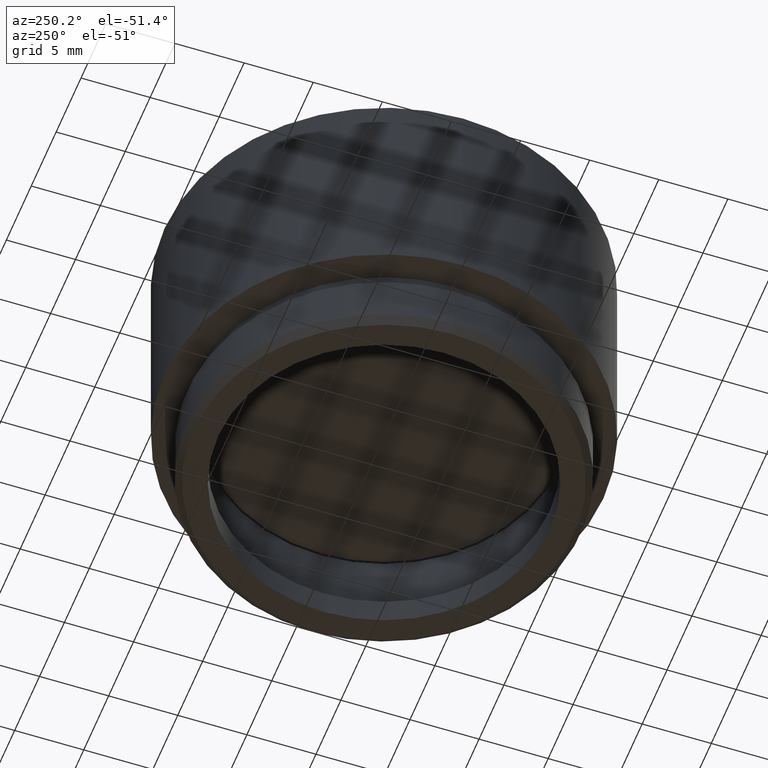
[diagram: clean part render]
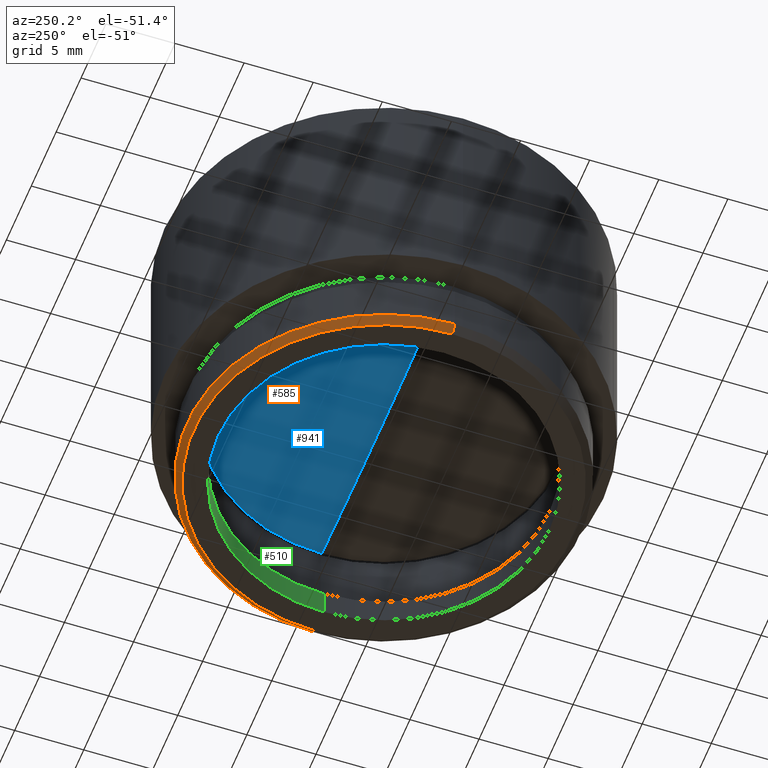
[diagram: same view with three faces highlighted in distinct colors, each labeled with its STEP entity id]
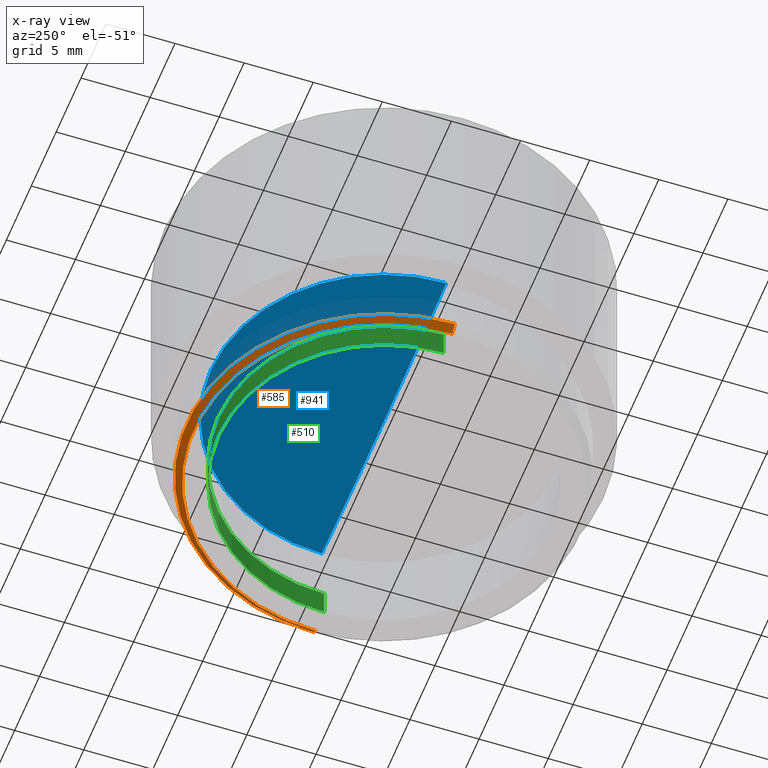
[diagram: x-ray of the same camera — body ghosted, the three highlighted faces saturated]
A machine part, auxiliary view with three faces highlighted in distinct colors.
The next image is the same camera in x-ray (body ghosted, the three faces saturated) — at least one of them is partly hidden behind the body in this view.
Their STEP definitions:

[orange] entity #585 — the highlighted conical surface has half-angle 45 deg.
#18 = CARTESIAN_POINT ( 'NONE',  ( 13.74999999999999112, 0.000000000000000000, 0.000000000000000000 ) ) ;
#77 = AXIS2_PLACEMENT_3D ( 'NONE', #1419, #218, #766 ) ;
#217 = VERTEX_POINT ( 'NONE', #669 ) ;
#218 = DIRECTION ( 'NONE',  ( 0.000000000000000000, 0.000000000000000000, 1.000000000000000000 ) ) ;
#233 = DIRECTION ( 'NONE',  ( -0.000000000000000000, -0.000000000000000000, -1.000000000000000000 ) ) ;
#242 = DIRECTION ( 'NONE',  ( -0.7071067811865512365, 8.659560562354978464E-17, 0.7071067811865439090 ) ) ;
#244 = CIRCLE ( 'NONE', #1109, 14.25000000000000000 ) ;
#366 = LINE ( 'NONE', #516, #1081 ) ;
#506 = DIRECTION ( 'NONE',  ( 1.000000000000000000, 0.000000000000000000, 0.000000000000000000 ) ) ;
#508 = FACE_OUTER_BOUND ( 'NONE', #1060, .T. ) ;
#512 = EDGE_CURVE ( 'NONE', #590, #217, #244, .T. ) ;
#516 = CARTESIAN_POINT ( 'NONE',  ( -13.74999999999999112, 1.683889348827609668E-15, 0.000000000000000000 ) ) ;
#557 = EDGE_CURVE ( 'NONE', #1184, #217, #366, .T. ) ;
#585 = ADVANCED_FACE ( 'NONE', ( #508 ), #604, .T. ) ;
#590 = VERTEX_POINT ( 'NONE', #774 ) ;
#604 = CONICAL_SURFACE ( 'NONE', #77, 13.74999999999999112, 0.7853981633974533860 ) ;
#643 = CARTESIAN_POINT ( 'NONE',  ( 0.000000000000000000, 0.000000000000000000, 0.5000000000000038858 ) ) ;
#661 = CARTESIAN_POINT ( 'NONE',  ( 13.74999999999999112, 0.000000000000000000, 0.000000000000000000 ) ) ;
#669 = CARTESIAN_POINT ( 'NONE',  ( -14.25000000000000000, 0.000000000000000000, 0.5000000000000038858 ) ) ;
#735 = EDGE_CURVE ( 'NONE', #1184, #1011, #1558, .T. ) ;
#758 = CARTESIAN_POINT ( 'NONE',  ( 0.000000000000000000, 0.000000000000000000, 0.000000000000000000 ) ) ;
#766 = DIRECTION ( 'NONE',  ( 1.000000000000000000, 0.000000000000000000, 0.000000000000000000 ) ) ;
#774 = CARTESIAN_POINT ( 'NONE',  ( 14.25000000000000000, 1.745121688784978228E-15, 0.5000000000000038858 ) ) ;
#786 = LINE ( 'NONE', #661, #1290 ) ;
#864 = CARTESIAN_POINT ( 'NONE',  ( -13.74999999999999112, 1.714505518806294046E-15, 0.000000000000000000 ) ) ;
#1011 = VERTEX_POINT ( 'NONE', #18 ) ;
#1060 = EDGE_LOOP ( 'NONE', ( #1319, #1089, #1342, #1686 ) ) ;
#1081 = VECTOR ( 'NONE', #242, 1000.000000000000000 ) ;
#1089 = ORIENTED_EDGE ( 'NONE', *, *, #557, .T. ) ;
#1109 = AXIS2_PLACEMENT_3D ( 'NONE', #643, #1680, #1548 ) ;
#1184 = VERTEX_POINT ( 'NONE', #864 ) ;
#1203 = DIRECTION ( 'NONE',  ( 0.7071067811865512365, 0.000000000000000000, 0.7071067811865439090 ) ) ;
#1290 = VECTOR ( 'NONE', #1203, 1000.000000000000000 ) ;
#1319 = ORIENTED_EDGE ( 'NONE', *, *, #735, .F. ) ;
#1342 = ORIENTED_EDGE ( 'NONE', *, *, #512, .F. ) ;
#1372 = EDGE_CURVE ( 'NONE', #1011, #590, #786, .T. ) ;
#1394 = AXIS2_PLACEMENT_3D ( 'NONE', #758, #233, #506 ) ;
#1419 = CARTESIAN_POINT ( 'NONE',  ( 0.000000000000000000, 0.000000000000000000, 0.000000000000000000 ) ) ;
#1548 = DIRECTION ( 'NONE',  ( 1.000000000000000000, 0.000000000000000000, 0.000000000000000000 ) ) ;
#1558 = CIRCLE ( 'NONE', #1394, 13.74999999999999112 ) ;
#1680 = DIRECTION ( 'NONE',  ( 0.000000000000000000, 0.000000000000000000, 1.000000000000000000 ) ) ;
#1686 = ORIENTED_EDGE ( 'NONE', *, *, #1372, .F. ) ;

[blue] entity #941 — the highlighted toroidal blend (fillet) surface has major radius 0.559 mm and minor (blend) radius 230.7 mm.
#129 = AXIS2_PLACEMENT_3D ( 'NONE', #1036, #344, #1689 ) ;
#136 = VERTEX_POINT ( 'NONE', #1376 ) ;
#138 = DIRECTION ( 'NONE',  ( 1.000000000000000000, 0.000000000000000000, 0.000000000000000000 ) ) ;
#196 = DIRECTION ( 'NONE',  ( 0.000000000000000000, 0.000000000000000000, -1.000000000000000000 ) ) ;
#223 = DIRECTION ( 'NONE',  ( 0.000000000000000000, -1.000000000000000000, 0.000000000000000000 ) ) ;
#278 = CARTESIAN_POINT ( 'NONE',  ( 0.000000000000000000, 0.000000000000000000, -10.19090256918211956 ) ) ;
#344 = DIRECTION ( 'NONE',  ( 1.224646799147351975E-16, 1.000000000000000000, 0.000000000000000000 ) ) ;
#375 = VERTEX_POINT ( 'NONE', #997 ) ;
#426 = DIRECTION ( 'NONE',  ( 0.000000000000000000, 0.000000000000000000, 1.000000000000000000 ) ) ;
#503 = EDGE_CURVE ( 'NONE', #1004, #136, #1027, .T. ) ;
#555 = FACE_OUTER_BOUND ( 'NONE', #1242, .T. ) ;
#598 = ORIENTED_EDGE ( 'NONE', *, *, #926, .T. ) ;
#620 = EDGE_CURVE ( 'NONE', #1004, #375, #1274, .T. ) ;
#674 = DIRECTION ( 'NONE',  ( 0.000000000000000000, 0.000000000000000000, -1.000000000000000000 ) ) ;
#880 = TOROIDAL_SURFACE ( 'NONE', #1072, 0.5590380582035209267, 230.6999999999999886 ) ;
#926 = EDGE_CURVE ( 'NONE', #375, #136, #935, .T. ) ;
#933 = CARTESIAN_POINT ( 'NONE',  ( 0.000000000000000000, 0.000000000000000000, 220.1993226614450236 ) ) ;
#935 = CIRCLE ( 'NONE', #1160, 12.51036092142453882 ) ;
#941 = ADVANCED_FACE ( 'NONE', ( #555 ), #880, .T. ) ;
#984 = ORIENTED_EDGE ( 'NONE', *, *, #620, .T. ) ;
#997 = CARTESIAN_POINT ( 'NONE',  ( -12.51036092142453882, 1.543689390388605065E-15, -10.19090256918211956 ) ) ;
#1004 = VERTEX_POINT ( 'NONE', #1098 ) ;
#1027 = CIRCLE ( 'NONE', #1655, 230.6999999999999886 ) ;
#1036 = CARTESIAN_POINT ( 'NONE',  ( -0.5590380582035209267, 6.846241685804929298E-17, 220.1993226614450236 ) ) ;
#1072 = AXIS2_PLACEMENT_3D ( 'NONE', #933, #426, #138 ) ;
#1098 = CARTESIAN_POINT ( 'NONE',  ( 3.621235256101584810E-14, 0.000000000000000000, -10.50000000000000000 ) ) ;
#1120 = CARTESIAN_POINT ( 'NONE',  ( 0.5590380582035209267, 0.000000000000000000, 220.1993226614450236 ) ) ;
#1160 = AXIS2_PLACEMENT_3D ( 'NONE', #278, #674, #1210 ) ;
#1210 = DIRECTION ( 'NONE',  ( 1.000000000000000000, 0.000000000000000000, 0.000000000000000000 ) ) ;
#1242 = EDGE_LOOP ( 'NONE', ( #1627, #984, #598 ) ) ;
#1274 = CIRCLE ( 'NONE', #129, 230.6999999999999886 ) ;
#1376 = CARTESIAN_POINT ( 'NONE',  ( 12.51036092142453882, 0.000000000000000000, -10.19090256918211956 ) ) ;
#1627 = ORIENTED_EDGE ( 'NONE', *, *, #503, .F. ) ;
#1655 = AXIS2_PLACEMENT_3D ( 'NONE', #1120, #223, #196 ) ;
#1689 = DIRECTION ( 'NONE',  ( -1.000000000000000000, 1.224646799147352221E-16, 0.000000000000000000 ) ) ;

[green] entity #510 — the highlighted cylindrical surface (partial cylindrical patch) has radius 12 mm, axis along (-0, -0, -1).
#110 = DIRECTION ( 'NONE',  ( 0.000000000000000000, 0.000000000000000000, 1.000000000000000000 ) ) ;
#142 = CARTESIAN_POINT ( 'NONE',  ( 12.00000000000000178, 1.469576158976824144E-15, 21.50000000000000000 ) ) ;
#210 = ORIENTED_EDGE ( 'NONE', *, *, #1065, .F. ) ;
#220 = CARTESIAN_POINT ( 'NONE',  ( 12.00000000000000178, 1.469576158976824144E-15, 0.000000000000000000 ) ) ;
#235 = CIRCLE ( 'NONE', #1674, 12.00000000000000178 ) ;
#294 = DIRECTION ( 'NONE',  ( 1.000000000000000000, 0.000000000000000000, 0.000000000000000000 ) ) ;
#298 = CARTESIAN_POINT ( 'NONE',  ( -12.00000000000000178, 0.000000000000000000, 0.000000000000000000 ) ) ;
#371 = EDGE_CURVE ( 'NONE', #1367, #767, #1066, .T. ) ;
#439 = ORIENTED_EDGE ( 'NONE', *, *, #371, .F. ) ;
#488 = AXIS2_PLACEMENT_3D ( 'NONE', #1489, #1477, #294 ) ;
#510 = ADVANCED_FACE ( 'NONE', ( #592 ), #1554, .F. ) ;
#592 = FACE_OUTER_BOUND ( 'NONE', #637, .T. ) ;
#595 = ORIENTED_EDGE ( 'NONE', *, *, #738, .T. ) ;
#637 = EDGE_LOOP ( 'NONE', ( #439, #595, #776, #210 ) ) ;
#738 = EDGE_CURVE ( 'NONE', #1367, #799, #235, .T. ) ;
#767 = VERTEX_POINT ( 'NONE', #220 ) ;
#776 = ORIENTED_EDGE ( 'NONE', *, *, #1592, .T. ) ;
#799 = VERTEX_POINT ( 'NONE', #1467 ) ;
#902 = DIRECTION ( 'NONE',  ( -1.000000000000000000, 0.000000000000000000, 0.000000000000000000 ) ) ;
#949 = DIRECTION ( 'NONE',  ( -0.000000000000000000, -0.000000000000000000, -1.000000000000000000 ) ) ;
#1023 = CARTESIAN_POINT ( 'NONE',  ( 0.000000000000000000, 0.000000000000000000, 1.999999999999998224 ) ) ;
#1065 = EDGE_CURVE ( 'NONE', #767, #1544, #1134, .T. ) ;
#1066 = LINE ( 'NONE', #142, #1599 ) ;
#1134 = CIRCLE ( 'NONE', #488, 12.00000000000000178 ) ;
#1163 = DIRECTION ( 'NONE',  ( -0.000000000000000000, -0.000000000000000000, -1.000000000000000000 ) ) ;
#1289 = CARTESIAN_POINT ( 'NONE',  ( 0.000000000000000000, 0.000000000000000000, 21.50000000000000000 ) ) ;
#1317 = CARTESIAN_POINT ( 'NONE',  ( 12.00000000000000178, 1.469576158976824144E-15, 1.999999999999998224 ) ) ;
#1367 = VERTEX_POINT ( 'NONE', #1317 ) ;
#1401 = DIRECTION ( 'NONE',  ( 1.000000000000000000, 0.000000000000000000, 0.000000000000000000 ) ) ;
#1427 = AXIS2_PLACEMENT_3D ( 'NONE', #1289, #1163, #902 ) ;
#1467 = CARTESIAN_POINT ( 'NONE',  ( -12.00000000000000178, 0.000000000000000000, 1.999999999999998224 ) ) ;
#1477 = DIRECTION ( 'NONE',  ( 0.000000000000000000, 0.000000000000000000, 1.000000000000000000 ) ) ;
#1485 = LINE ( 'NONE', #1594, #1582 ) ;
#1489 = CARTESIAN_POINT ( 'NONE',  ( 0.000000000000000000, 0.000000000000000000, 0.000000000000000000 ) ) ;
#1544 = VERTEX_POINT ( 'NONE', #298 ) ;
#1554 = CYLINDRICAL_SURFACE ( 'NONE', #1427, 12.00000000000000178 ) ;
#1582 = VECTOR ( 'NONE', #949, 1000.000000000000000 ) ;
#1584 = DIRECTION ( 'NONE',  ( -0.000000000000000000, -0.000000000000000000, -1.000000000000000000 ) ) ;
#1592 = EDGE_CURVE ( 'NONE', #799, #1544, #1485, .T. ) ;
#1594 = CARTESIAN_POINT ( 'NONE',  ( -12.00000000000000178, 0.000000000000000000, 21.50000000000000000 ) ) ;
#1599 = VECTOR ( 'NONE', #1584, 1000.000000000000000 ) ;
#1674 = AXIS2_PLACEMENT_3D ( 'NONE', #1023, #110, #1401 ) ;